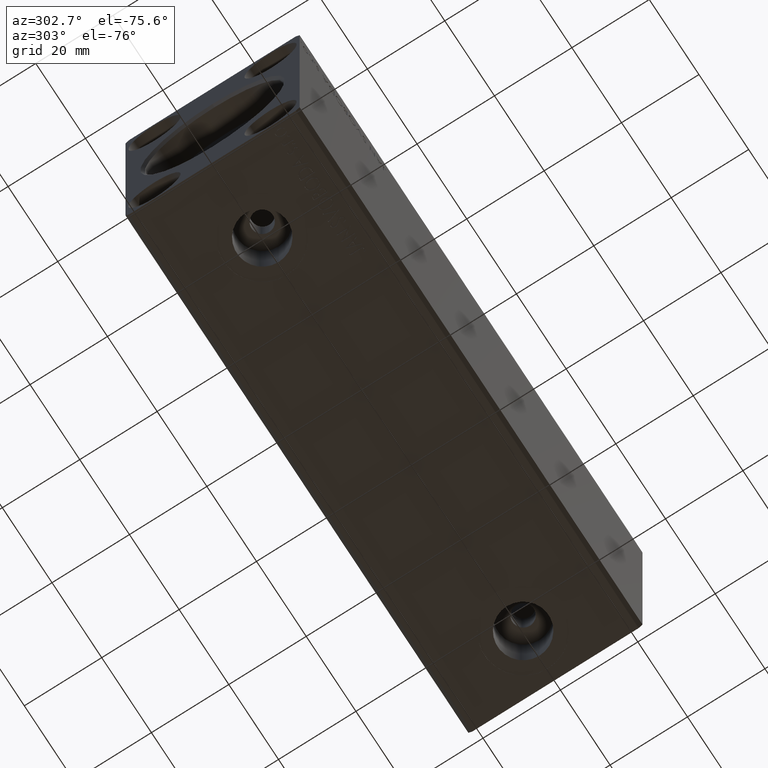
[diagram: clean part render]
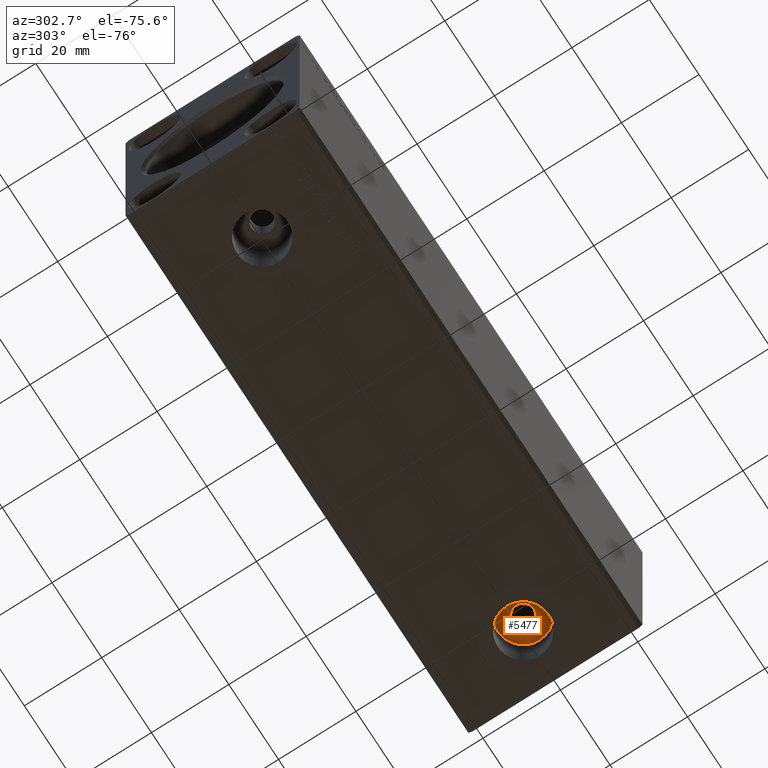
[diagram: same view with one face highlighted and labeled with its STEP entity id]
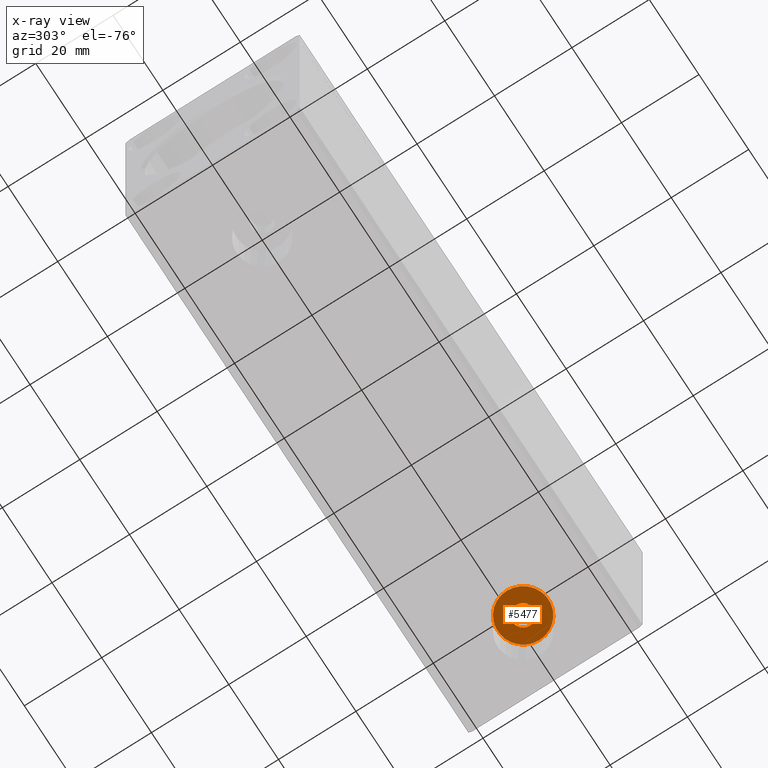
[diagram: x-ray of the same camera — body ghosted, the highlighted face saturated]
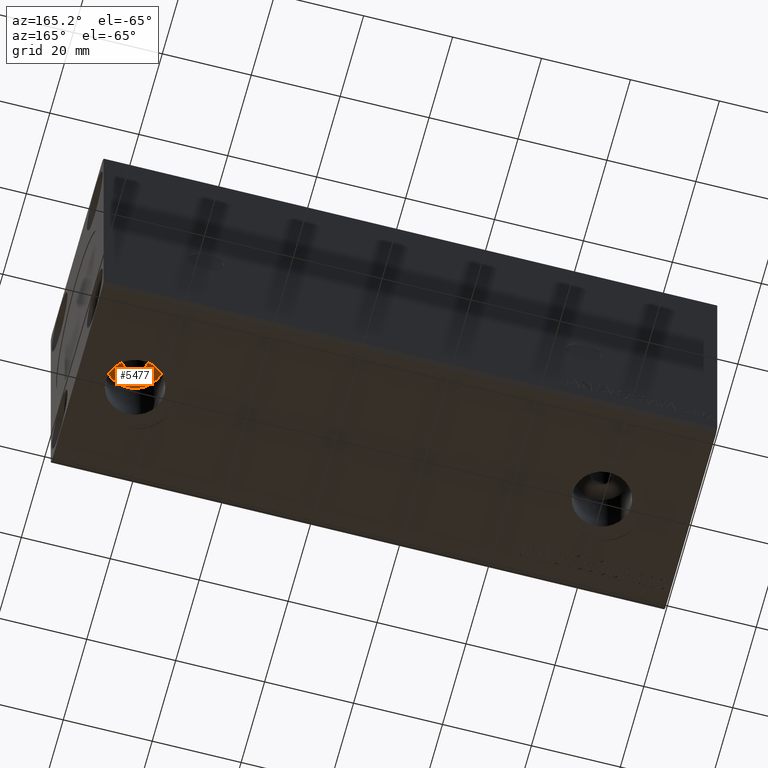
[diagram: same view with one face highlighted and labeled with its STEP entity id]
A machine part, auxiliary view. The second image highlights one B-rep face of the part: STEP entity #5477.
The next image is the same camera in x-ray: the body ghosted, the highlighted face saturated — about 0% of this face is hidden behind the body in this view.
A second angle (auxiliary view) of the same face is appended — the face is thin or edge-on in the first view.
In plain terms, the highlighted planar face has unit normal (0, 0, -1).
Its self-contained STEP definition (entity closure, byte-faithful):
#281 = CARTESIAN_POINT ( 'NONE',  ( 125.0000000000000000, -8.633274973465969897E-15, -18.79999999999999716 ) ) ;
#1457 = CIRCLE ( 'NONE', #20034, 6.580000000000002736 ) ;
#1544 = DIRECTION ( 'NONE',  ( -1.000000000000000000, 0.000000000000000000, 0.000000000000000000 ) ) ;
#1766 = CARTESIAN_POINT ( 'NONE',  ( 0.000000000000000000, 0.000000000000000000, -18.79999999999999716 ) ) ;
#2435 = DIRECTION ( 'NONE',  ( 0.000000000000000000, 0.000000000000000000, -1.000000000000000000 ) ) ;
#5370 = EDGE_CURVE ( 'NONE', #41865, #33109, #36539, .T. ) ;
#5477 = ADVANCED_FACE ( 'NONE', ( #37738, #17492 ), #31279, .T. ) ;
#5678 = CARTESIAN_POINT ( 'NONE',  ( 125.0000000000000000, -8.633274973465969897E-15, -18.79999999999999716 ) ) ;
#6096 = DIRECTION ( 'NONE',  ( 0.000000000000000000, 0.000000000000000000, -1.000000000000000000 ) ) ;
#7804 = DIRECTION ( 'NONE',  ( 0.000000000000000000, 0.000000000000000000, -1.000000000000000000 ) ) ;
#9574 = EDGE_LOOP ( 'NONE', ( #27721, #31746 ) ) ;
#10429 = ORIENTED_EDGE ( 'NONE', *, *, #28955, .T. ) ;
#11931 = AXIS2_PLACEMENT_3D ( 'NONE', #5678, #2435, #28709 ) ;
#15357 = CARTESIAN_POINT ( 'NONE',  ( 127.7500000000000000, -8.296497103700445084E-15, -18.79999999999999716 ) ) ;
#15674 = EDGE_CURVE ( 'NONE', #33109, #41865, #31583, .T. ) ;
#17492 = FACE_OUTER_BOUND ( 'NONE', #40906, .T. ) ;
#19456 = DIRECTION ( 'NONE',  ( -1.000000000000000000, 0.000000000000000000, 0.000000000000000000 ) ) ;
#20034 = AXIS2_PLACEMENT_3D ( 'NONE', #21354, #34501, #1544 ) ;
#21239 = AXIS2_PLACEMENT_3D ( 'NONE', #22458, #6096, #19456 ) ;
#21354 = CARTESIAN_POINT ( 'NONE',  ( 125.0000000000000000, -8.633274973465969897E-15, -18.79999999999999716 ) ) ;
#22458 = CARTESIAN_POINT ( 'NONE',  ( 125.0000000000000000, -8.633274973465969897E-15, -18.79999999999999716 ) ) ;
#25008 = VERTEX_POINT ( 'NONE', #32066 ) ;
#27721 = ORIENTED_EDGE ( 'NONE', *, *, #15674, .F. ) ;
#28709 = DIRECTION ( 'NONE',  ( -1.000000000000000000, 0.000000000000000000, 0.000000000000000000 ) ) ;
#28955 = EDGE_CURVE ( 'NONE', #25008, #34494, #1457, .T. ) ;
#30620 = ORIENTED_EDGE ( 'NONE', *, *, #34551, .T. ) ;
#31279 = PLANE ( 'NONE',  #32409 ) ;
#31583 = CIRCLE ( 'NONE', #21239, 2.750000000000002665 ) ;
#31746 = ORIENTED_EDGE ( 'NONE', *, *, #5370, .F. ) ;
#32066 = CARTESIAN_POINT ( 'NONE',  ( 118.4200000000000017, -8.633274973465969897E-15, -18.79999999999999716 ) ) ;
#32409 = AXIS2_PLACEMENT_3D ( 'NONE', #1766, #7804, #34289 ) ;
#33109 = VERTEX_POINT ( 'NONE', #42282 ) ;
#34075 = DIRECTION ( 'NONE',  ( 0.000000000000000000, 0.000000000000000000, -1.000000000000000000 ) ) ;
#34289 = DIRECTION ( 'NONE',  ( -1.000000000000000000, 0.000000000000000000, -0.000000000000000000 ) ) ;
#34494 = VERTEX_POINT ( 'NONE', #39044 ) ;
#34501 = DIRECTION ( 'NONE',  ( 0.000000000000000000, 0.000000000000000000, -1.000000000000000000 ) ) ;
#34551 = EDGE_CURVE ( 'NONE', #34494, #25008, #39445, .T. ) ;
#36539 = CIRCLE ( 'NONE', #37215, 2.750000000000002665 ) ;
#37215 = AXIS2_PLACEMENT_3D ( 'NONE', #281, #34075, #40755 ) ;
#37738 = FACE_BOUND ( 'NONE', #9574, .T. ) ;
#39044 = CARTESIAN_POINT ( 'NONE',  ( 131.5800000000000125, -7.827457379627010855E-15, -18.79999999999999716 ) ) ;
#39445 = CIRCLE ( 'NONE', #11931, 6.580000000000002736 ) ;
#40755 = DIRECTION ( 'NONE',  ( -1.000000000000000000, 0.000000000000000000, 0.000000000000000000 ) ) ;
#40906 = EDGE_LOOP ( 'NONE', ( #10429, #30620 ) ) ;
#41865 = VERTEX_POINT ( 'NONE', #15357 ) ;
#42282 = CARTESIAN_POINT ( 'NONE',  ( 122.2500000000000000, -8.633274973465969897E-15, -18.79999999999999716 ) ) ;